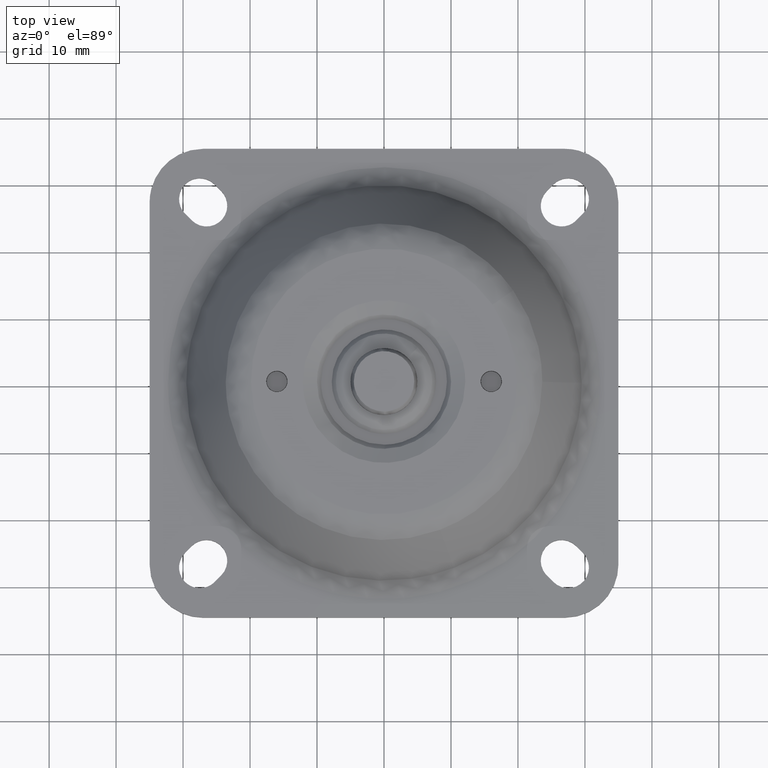
[diagram: clean part render]
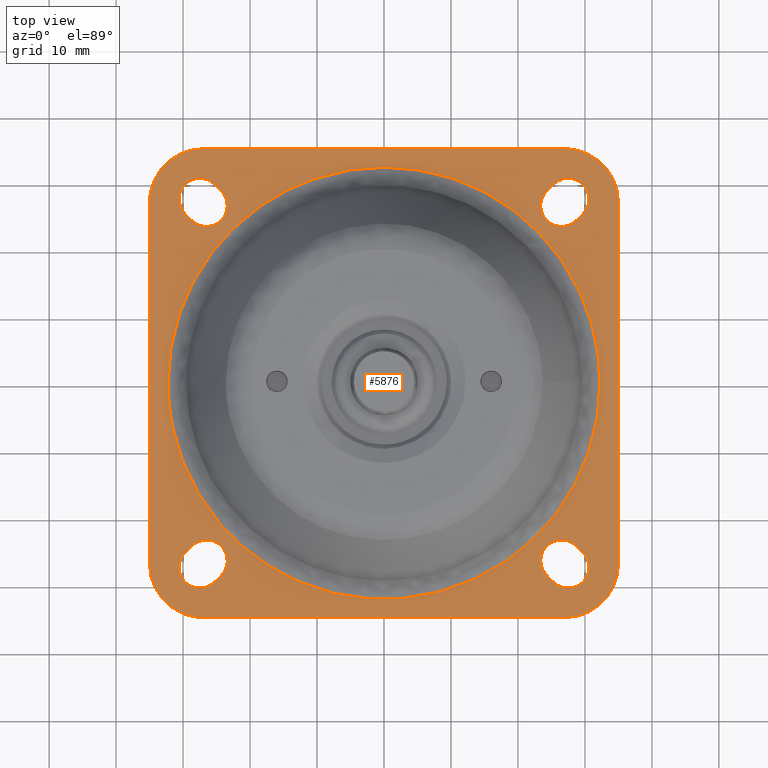
[diagram: same view with one face highlighted and labeled with its STEP entity id]
A machine part, top view. The second image highlights one B-rep face of the part: STEP entity #5876.
In plain terms, the highlighted face is a freeform B-spline surface patch.
Its self-contained STEP definition (entity closure, byte-faithful):
#4010=CARTESIAN_POINT('',(29.180672441513511,13.731382152763819,14.0));
#4011=VERTEX_POINT('',#4010);
#4025=CARTESIAN_POINT('',(-10.270217854380959,30.570985022107450,14.0));
#4026=VERTEX_POINT('',#4025);
#4027=CARTESIAN_POINT('',(-10.270217854380959,30.570985022107454,14.000000000000002));
#4028=CARTESIAN_POINT('',(-5.272354861792392,32.249999999999993,13.999999999999995));
#4029=CARTESIAN_POINT('',(0.0,32.250000000000000,14.0));
#4030=CARTESIAN_POINT('',(20.466472345757058,32.250000000000007,14.000000000000002));
#4031=CARTESIAN_POINT('',(29.180672441513508,13.731382152763823,13.999999999999996));
#4039=(BOUNDED_CURVE()B_SPLINE_CURVE(2,(#4027,#4028,#4029,#4030,#4031),.UNSPECIFIED.,.F.,.U.)B_SPLINE_CURVE_WITH_KNOTS((3,2,3),(0.195865557710878,0.250000000000000,0.427668464636188),.UNSPECIFIED.)CURVE()GEOMETRIC_REPRESENTATION_ITEM()RATIONAL_B_SPLINE_CURVE((0.900621820758451,0.936577555797072,1.0,0.791848446044251,0.879552628112139))REPRESENTATION_ITEM(''));
#4040=EDGE_CURVE('',#4026,#4011,#4039,.T.);
#4109=CARTESIAN_POINT('',(-32.250000000000000,0.0,14.0));
#4110=VERTEX_POINT('',#4109);
#4111=CARTESIAN_POINT('',(-32.250000000000000,0.0,14.0));
#4112=CARTESIAN_POINT('',(-32.250000000000000,23.186952389097335,13.999999999999996));
#4113=CARTESIAN_POINT('',(-10.270217854380959,30.570985022107454,14.000000000000002));
#4121=(BOUNDED_CURVE()B_SPLINE_CURVE(2,(#4111,#4112,#4113),.UNSPECIFIED.,.F.,.U.)B_SPLINE_CURVE_WITH_KNOTS((3,3),(0.0,0.195865557710878),.UNSPECIFIED.)CURVE()GEOMETRIC_REPRESENTATION_ITEM()RATIONAL_B_SPLINE_CURVE((1.0,0.770529225389476,0.900621820758451))REPRESENTATION_ITEM(''));
#4122=EDGE_CURVE('',#4110,#4026,#4121,.T.);
#4124=CARTESIAN_POINT('',(32.250000000000000,0.0,14.0));
#4125=VERTEX_POINT('',#4124);
#4126=CARTESIAN_POINT('',(32.250000000000000,0.0,14.0));
#4127=CARTESIAN_POINT('',(32.250000000000000,-32.250000000000000,13.999999999999998));
#4128=CARTESIAN_POINT('',(0.0,-32.250000000000000,14.0));
#4129=CARTESIAN_POINT('',(-32.250000000000000,-32.250000000000000,13.999999999999998));
#4130=CARTESIAN_POINT('',(-32.250000000000000,0.0,14.0));
#4138=(BOUNDED_CURVE()B_SPLINE_CURVE(2,(#4126,#4127,#4128,#4129,#4130),.UNSPECIFIED.,.F.,.U.)B_SPLINE_CURVE_WITH_KNOTS((3,2,3),(0.500000000000000,0.750000000000000,1.0),.UNSPECIFIED.)CURVE()GEOMETRIC_REPRESENTATION_ITEM()RATIONAL_B_SPLINE_CURVE((1.0,0.707106781186548,1.0,0.707106781186548,1.0))REPRESENTATION_ITEM(''));
#4139=EDGE_CURVE('',#4125,#4110,#4138,.T.);
#4141=CARTESIAN_POINT('',(29.180672441513511,13.731382152763819,14.000000000000004));
#4142=CARTESIAN_POINT('',(32.250000000000000,7.208729073464277,14.000000000000002));
#4143=CARTESIAN_POINT('',(32.250000000000000,0.0,14.0));
#4151=(BOUNDED_CURVE()B_SPLINE_CURVE(2,(#4141,#4142,#4143),.UNSPECIFIED.,.F.,.U.)B_SPLINE_CURVE_WITH_KNOTS((3,3),(0.427668464636188,0.500000000000000),.UNSPECIFIED.)CURVE()GEOMETRIC_REPRESENTATION_ITEM()RATIONAL_B_SPLINE_CURVE((0.879552628112139,0.915258335142296,1.0))REPRESENTATION_ITEM(''));
#4152=EDGE_CURVE('',#4011,#4125,#4151,.T.);
#4692=CARTESIAN_POINT('',(-28.692029733588750,24.307968690246401,14.000000000000121));
#4693=VERTEX_POINT('',#4692);
#4694=CARTESIAN_POINT('',(-24.307974266392701,28.692037309753601,14.000000000000121));
#4695=VERTEX_POINT('',#4694);
#4696=CARTESIAN_POINT('',(-28.692029733588761,24.307968690246391,14.000000000000121));
#4697=CARTESIAN_POINT('',(-27.426458134779605,23.042400888182428,14.000000000000126));
#4698=CARTESIAN_POINT('',(-25.697658468576009,23.505634142027262,14.000000000000121));
#4699=CARTESIAN_POINT('',(-23.968858802372406,23.968867395872085,14.000000000000126));
#4700=CARTESIAN_POINT('',(-23.505630734977959,25.697668451780888,14.000000000000121));
#4701=CARTESIAN_POINT('',(-23.042402667583509,27.426469507689681,14.000000000000126));
#4702=CARTESIAN_POINT('',(-24.307974266392669,28.692037309753630,14.000000000000121));
#4710=(BOUNDED_CURVE()B_SPLINE_CURVE(2,(#4696,#4697,#4698,#4699,#4700,#4701,#4702),.UNSPECIFIED.,.F.,.U.)B_SPLINE_CURVE_WITH_KNOTS((3,2,2,3),(0.0,0.333333333333333,0.666666666666667,1.0),.UNSPECIFIED.)CURVE()GEOMETRIC_REPRESENTATION_ITEM()RATIONAL_B_SPLINE_CURVE((1.0,0.866025403784438,1.0,0.866025403784438,1.0,0.866025403784438,1.0))REPRESENTATION_ITEM(''));
#4711=EDGE_CURVE('',#4693,#4695,#4710,.T.);
#4752=CARTESIAN_POINT('',(-25.307969266401749,29.692029309753600,14.000000000000121));
#4753=VERTEX_POINT('',#4752);
#4765=CARTESIAN_POINT('',(-25.307969266401749,29.692029309753600,14.000000000000121));
#4766=CARTESIAN_POINT('',(-24.307974266392701,28.692037309753601,14.000000000000121));
#4767=QUASI_UNIFORM_CURVE('',1,(#4765,#4766),.UNSPECIFIED.,.F.,.U.);
#4768=EDGE_CURVE('',#4753,#4695,#4767,.T.);
#4791=CARTESIAN_POINT('',(-29.692024733598050,25.307960690246549,14.000000000000121));
#4792=VERTEX_POINT('',#4791);
#4793=CARTESIAN_POINT('',(-25.307969266401770,29.692029309753579,14.000000000000121));
#4794=CARTESIAN_POINT('',(-27.500003576155290,31.884057043351692,14.000000000000123));
#4795=CARTESIAN_POINT('',(-29.692031309753421,29.692022733598190,14.000000000000121));
#4796=CARTESIAN_POINT('',(-31.884059043351549,27.499988423844684,14.000000000000123));
#4797=CARTESIAN_POINT('',(-29.692024733598060,25.307960690246539,14.000000000000121));
#4805=(BOUNDED_CURVE()B_SPLINE_CURVE(2,(#4793,#4794,#4795,#4796,#4797),.UNSPECIFIED.,.F.,.U.)B_SPLINE_CURVE_WITH_KNOTS((3,2,3),(0.0,0.500000000000000,1.0),.UNSPECIFIED.)CURVE()GEOMETRIC_REPRESENTATION_ITEM()RATIONAL_B_SPLINE_CURVE((1.0,0.707106781186550,1.0,0.707106781186550,1.0))REPRESENTATION_ITEM(''));
#4806=EDGE_CURVE('',#4753,#4792,#4805,.T.);
#4846=CARTESIAN_POINT('',(-28.692029733588750,24.307968690246401,14.000000000000121));
#4847=CARTESIAN_POINT('',(-29.692024733598050,25.307960690246549,14.000000000000121));
#4848=QUASI_UNIFORM_CURVE('',1,(#4846,#4847),.UNSPECIFIED.,.F.,.U.);
#4849=EDGE_CURVE('',#4693,#4792,#4848,.T.);
#4872=CARTESIAN_POINT('',(24.307974266392900,28.692037309753601,14.000000000000121));
#4873=VERTEX_POINT('',#4872);
#4874=CARTESIAN_POINT('',(28.692029733589099,24.307968690246351,14.000000000000121));
#4875=VERTEX_POINT('',#4874);
#4876=CARTESIAN_POINT('',(24.307974266392922,28.692037309753580,14.000000000000121));
#4877=CARTESIAN_POINT('',(22.115939956639359,26.500009576155509,14.000000000000119));
#4878=CARTESIAN_POINT('',(24.307967690237412,24.307975266401940,14.000000000000121));
#4879=CARTESIAN_POINT('',(26.499995423835458,22.115940956648366,14.000000000000119));
#4880=CARTESIAN_POINT('',(28.692029733589060,24.307968690246391,14.000000000000121));
#4888=(BOUNDED_CURVE()B_SPLINE_CURVE(2,(#4876,#4877,#4878,#4879,#4880),.UNSPECIFIED.,.F.,.U.)B_SPLINE_CURVE_WITH_KNOTS((3,2,3),(0.0,0.500000000000000,1.0),.UNSPECIFIED.)CURVE()GEOMETRIC_REPRESENTATION_ITEM()RATIONAL_B_SPLINE_CURVE((1.0,0.707106781186550,1.0,0.707106781186550,1.0))REPRESENTATION_ITEM(''));
#4889=EDGE_CURVE('',#4873,#4875,#4888,.T.);
#4930=CARTESIAN_POINT('',(29.692024733598199,25.307960690246500,14.000000000000121));
#4931=VERTEX_POINT('',#4930);
#4943=CARTESIAN_POINT('',(29.692024733598199,25.307960690246500,14.000000000000121));
#4944=CARTESIAN_POINT('',(28.692029733589099,24.307968690246351,14.000000000000121));
#4945=QUASI_UNIFORM_CURVE('',1,(#4943,#4944),.UNSPECIFIED.,.F.,.U.);
#4946=EDGE_CURVE('',#4931,#4875,#4945,.T.);
#4969=CARTESIAN_POINT('',(25.307969266401951,29.692029309753600,14.000000000000121));
#4970=VERTEX_POINT('',#4969);
#4971=CARTESIAN_POINT('',(29.692024733598210,25.307960690246489,14.000000000000121));
#4972=CARTESIAN_POINT('',(30.957596332407327,26.573528492310491,14.000000000000126));
#4973=CARTESIAN_POINT('',(30.494368265012820,28.302329548219269,14.000000000000121));
#4974=CARTESIAN_POINT('',(30.031140197618321,30.031130604128041,14.000000000000126));
#4975=CARTESIAN_POINT('',(28.302340531414700,30.494363857972822,14.000000000000121));
#4976=CARTESIAN_POINT('',(26.573540865211069,30.957597111817591,14.000000000000126));
#4977=CARTESIAN_POINT('',(25.307969266401969,29.692029309753579,14.000000000000121));
#4985=(BOUNDED_CURVE()B_SPLINE_CURVE(2,(#4971,#4972,#4973,#4974,#4975,#4976,#4977),.UNSPECIFIED.,.F.,.U.)B_SPLINE_CURVE_WITH_KNOTS((3,2,2,3),(0.0,0.333333333333333,0.666666666666667,1.0),.UNSPECIFIED.)CURVE()GEOMETRIC_REPRESENTATION_ITEM()RATIONAL_B_SPLINE_CURVE((1.0,0.866025403784438,1.0,0.866025403784438,1.0,0.866025403784438,1.0))REPRESENTATION_ITEM(''));
#4986=EDGE_CURVE('',#4931,#4970,#4985,.T.);
#5028=CARTESIAN_POINT('',(24.307974266392900,28.692037309753601,14.000000000000121));
#5029=CARTESIAN_POINT('',(25.307969266401951,29.692029309753600,14.000000000000121));
#5030=QUASI_UNIFORM_CURVE('',1,(#5028,#5029),.UNSPECIFIED.,.F.,.U.);
#5031=EDGE_CURVE('',#4873,#4970,#5030,.T.);
#5054=CARTESIAN_POINT('',(25.307977266411200,-29.692029309753600,14.000000000000121));
#5055=VERTEX_POINT('',#5054);
#5056=CARTESIAN_POINT('',(29.692032733607348,-25.307960690246400,14.000000000000121));
#5057=VERTEX_POINT('',#5056);
#5058=CARTESIAN_POINT('',(25.307977266411221,-29.692029309753579,14.000000000000121));
#5059=CARTESIAN_POINT('',(26.573548865220353,-30.957597111817570,14.000000000000119));
#5060=CARTESIAN_POINT('',(28.302348531423959,-30.494363857972751,14.000000000000121));
#5061=CARTESIAN_POINT('',(30.031148197627569,-30.031130604127938,14.000000000000119));
#5062=CARTESIAN_POINT('',(30.494376265022041,-28.302329548219149,14.000000000000121));
#5063=CARTESIAN_POINT('',(30.957604332416505,-26.573528492310363,14.000000000000119));
#5064=CARTESIAN_POINT('',(29.692032733607359,-25.307960690246389,14.000000000000121));
#5072=(BOUNDED_CURVE()B_SPLINE_CURVE(2,(#5058,#5059,#5060,#5061,#5062,#5063,#5064),.UNSPECIFIED.,.F.,.U.)B_SPLINE_CURVE_WITH_KNOTS((3,2,2,3),(0.0,0.333333333333333,0.666666666666667,1.0),.UNSPECIFIED.)CURVE()GEOMETRIC_REPRESENTATION_ITEM()RATIONAL_B_SPLINE_CURVE((1.0,0.866025403784438,1.0,0.866025403784438,1.0,0.866025403784438,1.0))REPRESENTATION_ITEM(''));
#5073=EDGE_CURVE('',#5055,#5057,#5072,.T.);
#5114=CARTESIAN_POINT('',(24.307982266401950,-28.692037309753498,14.000000000000121));
#5115=VERTEX_POINT('',#5114);
#5116=CARTESIAN_POINT('',(24.307982266401950,-28.692037309753498,14.000000000000121));
#5117=CARTESIAN_POINT('',(25.307977266411200,-29.692029309753600,14.000000000000121));
#5118=QUASI_UNIFORM_CURVE('',1,(#5116,#5117),.UNSPECIFIED.,.F.,.U.);
#5119=EDGE_CURVE('',#5115,#5055,#5118,.T.);
#5155=CARTESIAN_POINT('',(28.692037733598202,-24.307968690246401,14.000000000000121));
#5156=VERTEX_POINT('',#5155);
#5157=CARTESIAN_POINT('',(28.692037733598159,-24.307968690246440,14.000000000000121));
#5158=CARTESIAN_POINT('',(27.426466134789056,-23.042400888182403,14.000000000000124));
#5159=CARTESIAN_POINT('',(25.697666468585421,-23.505634142027180,14.000000000000121));
#5160=CARTESIAN_POINT('',(23.968866802381790,-23.968867395871943,14.000000000000124));
#5161=CARTESIAN_POINT('',(23.505638734987279,-25.697668451780739,14.000000000000121));
#5162=CARTESIAN_POINT('',(23.042410667592776,-27.426469507689536,14.000000000000124));
#5163=CARTESIAN_POINT('',(24.307982266401918,-28.692037309753530,14.000000000000121));
#5171=(BOUNDED_CURVE()B_SPLINE_CURVE(2,(#5157,#5158,#5159,#5160,#5161,#5162,#5163),.UNSPECIFIED.,.F.,.U.)B_SPLINE_CURVE_WITH_KNOTS((3,2,2,3),(0.0,0.333333333333333,0.666666666666667,1.0),.UNSPECIFIED.)CURVE()GEOMETRIC_REPRESENTATION_ITEM()RATIONAL_B_SPLINE_CURVE((1.0,0.866025403784436,1.0,0.866025403784436,1.0,0.866025403784436,1.0))REPRESENTATION_ITEM(''));
#5172=EDGE_CURVE('',#5156,#5115,#5171,.T.);
#5207=CARTESIAN_POINT('',(29.692032733607348,-25.307960690246400,14.000000000000121));
#5208=CARTESIAN_POINT('',(28.692037733598202,-24.307968690246401,14.000000000000121));
#5209=QUASI_UNIFORM_CURVE('',1,(#5207,#5208),.UNSPECIFIED.,.F.,.U.);
#5210=EDGE_CURVE('',#5057,#5156,#5209,.T.);
#5240=CARTESIAN_POINT('',(-29.692031733607049,-25.307960690246400,14.000000000000121));
#5241=VERTEX_POINT('',#5240);
#5242=CARTESIAN_POINT('',(-25.307976266411000,-29.692029309753600,14.000000000000121));
#5243=VERTEX_POINT('',#5242);
#5244=CARTESIAN_POINT('',(-29.692031733607049,-25.307960690246389,14.000000000000121));
#5245=CARTESIAN_POINT('',(-31.884066043360654,-27.499988423844428,14.000000000000121));
#5246=CARTESIAN_POINT('',(-29.692038309762619,-29.692022733598041,14.000000000000121));
#5247=CARTESIAN_POINT('',(-27.500010576164602,-31.884057043351650,14.000000000000121));
#5248=CARTESIAN_POINT('',(-25.307976266410972,-29.692029309753639,14.000000000000121));
#5256=(BOUNDED_CURVE()B_SPLINE_CURVE(2,(#5244,#5245,#5246,#5247,#5248),.UNSPECIFIED.,.F.,.U.)B_SPLINE_CURVE_WITH_KNOTS((3,2,3),(0.0,0.500000000000000,1.0),.UNSPECIFIED.)CURVE()GEOMETRIC_REPRESENTATION_ITEM()RATIONAL_B_SPLINE_CURVE((1.0,0.707106781186550,1.0,0.707106781186550,1.0))REPRESENTATION_ITEM(''));
#5257=EDGE_CURVE('',#5241,#5243,#5256,.T.);
#5298=CARTESIAN_POINT('',(-24.307981266401800,-28.692037309753498,14.000000000000121));
#5299=VERTEX_POINT('',#5298);
#5311=CARTESIAN_POINT('',(-24.307981266401800,-28.692037309753498,14.000000000000121));
#5312=CARTESIAN_POINT('',(-25.307976266411000,-29.692029309753600,14.000000000000121));
#5313=QUASI_UNIFORM_CURVE('',1,(#5311,#5312),.UNSPECIFIED.,.F.,.U.);
#5314=EDGE_CURVE('',#5299,#5243,#5313,.T.);
#5337=CARTESIAN_POINT('',(-28.692036733598052,-24.307968690246401,14.000000000000121));
#5338=VERTEX_POINT('',#5337);
#5339=CARTESIAN_POINT('',(-24.307981266401800,-28.692037309753509,14.000000000000121));
#5340=CARTESIAN_POINT('',(-23.042409667592686,-27.426469507689507,14.000000000000126));
#5341=CARTESIAN_POINT('',(-23.505637734987189,-25.697668451780729,14.000000000000121));
#5342=CARTESIAN_POINT('',(-23.968865802381689,-23.968867395871946,14.000000000000126));
#5343=CARTESIAN_POINT('',(-25.697665468585310,-23.505634142027180,14.000000000000121));
#5344=CARTESIAN_POINT('',(-27.426465134788927,-23.042400888182407,14.000000000000126));
#5345=CARTESIAN_POINT('',(-28.692036733598030,-24.307968690246419,14.000000000000121));
#5353=(BOUNDED_CURVE()B_SPLINE_CURVE(2,(#5339,#5340,#5341,#5342,#5343,#5344,#5345),.UNSPECIFIED.,.F.,.U.)B_SPLINE_CURVE_WITH_KNOTS((3,2,2,3),(0.0,0.333333333333333,0.666666666666667,1.0),.UNSPECIFIED.)CURVE()GEOMETRIC_REPRESENTATION_ITEM()RATIONAL_B_SPLINE_CURVE((1.0,0.866025403784438,1.0,0.866025403784438,1.0,0.866025403784438,1.0))REPRESENTATION_ITEM(''));
#5354=EDGE_CURVE('',#5299,#5338,#5353,.T.);
#5396=CARTESIAN_POINT('',(-29.692031733607049,-25.307960690246400,14.000000000000121));
#5397=CARTESIAN_POINT('',(-28.692036733598052,-24.307968690246401,14.000000000000121));
#5398=QUASI_UNIFORM_CURVE('',1,(#5396,#5397),.UNSPECIFIED.,.F.,.U.);
#5399=EDGE_CURVE('',#5241,#5338,#5398,.T.);
#5474=CARTESIAN_POINT('',(27.0,35.0,14.000000000000121));
#5475=VERTEX_POINT('',#5474);
#5476=CARTESIAN_POINT('',(-27.0,35.0,14.000000000000121));
#5477=VERTEX_POINT('',#5476);
#5478=CARTESIAN_POINT('',(27.0,35.0,14.000000000000121));
#5479=CARTESIAN_POINT('',(-27.0,35.0,14.000000000000121));
#5480=QUASI_UNIFORM_CURVE('',1,(#5478,#5479),.UNSPECIFIED.,.F.,.U.);
#5481=EDGE_CURVE('',#5475,#5477,#5480,.T.);
#5519=CARTESIAN_POINT('',(35.0,27.0,14.000000000000121));
#5520=VERTEX_POINT('',#5519);
#5521=CARTESIAN_POINT('',(35.0,27.0,14.000000000000121));
#5522=CARTESIAN_POINT('',(34.999999999999993,34.999999999999993,14.000000000000123));
#5523=CARTESIAN_POINT('',(27.0,35.0,14.000000000000121));
#5531=(BOUNDED_CURVE()B_SPLINE_CURVE(2,(#5521,#5522,#5523),.UNSPECIFIED.,.F.,.U.)CURVE()GEOMETRIC_REPRESENTATION_ITEM()QUASI_UNIFORM_CURVE()RATIONAL_B_SPLINE_CURVE((1.0,0.707106781186548,1.0))REPRESENTATION_ITEM(''));
#5532=EDGE_CURVE('',#5520,#5475,#5531,.T.);
#5563=CARTESIAN_POINT('',(35.0,-27.000004000000050,14.000000000000121));
#5564=VERTEX_POINT('',#5563);
#5565=CARTESIAN_POINT('',(35.0,-27.000004000000050,14.000000000000121));
#5566=CARTESIAN_POINT('',(35.0,27.0,14.000000000000121));
#5567=QUASI_UNIFORM_CURVE('',1,(#5565,#5566),.UNSPECIFIED.,.F.,.U.);
#5568=EDGE_CURVE('',#5564,#5520,#5567,.T.);
#5600=CARTESIAN_POINT('',(26.999999000000098,-35.000003999999997,14.000000000000121));
#5601=VERTEX_POINT('',#5600);
#5602=CARTESIAN_POINT('',(26.999999000000098,-35.000003999999990,14.000000000000121));
#5603=CARTESIAN_POINT('',(30.313707791878034,-35.000004414213556,14.000000000000126));
#5604=CARTESIAN_POINT('',(32.656853895939022,-32.656858603045777,14.000000000000121));
#5605=CARTESIAN_POINT('',(35.000000000000007,-30.313712791878004,14.000000000000126));
#5606=CARTESIAN_POINT('',(35.0,-27.000004000000050,14.000000000000121));
#5614=(BOUNDED_CURVE()B_SPLINE_CURVE(2,(#5602,#5603,#5604,#5605,#5606),.UNSPECIFIED.,.F.,.U.)B_SPLINE_CURVE_WITH_KNOTS((3,2,3),(0.0,0.500000000000000,1.0),.UNSPECIFIED.)CURVE()GEOMETRIC_REPRESENTATION_ITEM()RATIONAL_B_SPLINE_CURVE((1.0,0.923879520552430,1.0,0.923879520552430,1.0))REPRESENTATION_ITEM(''));
#5615=EDGE_CURVE('',#5601,#5564,#5614,.T.);
#5648=CARTESIAN_POINT('',(-26.999999720747400,-35.000004000000047,14.000000000000121));
#5649=VERTEX_POINT('',#5648);
#5650=CARTESIAN_POINT('',(-26.999999720747400,-35.000004000000047,14.000000000000121));
#5651=CARTESIAN_POINT('',(26.999999000000098,-35.000003999999997,14.000000000000121));
#5652=QUASI_UNIFORM_CURVE('',1,(#5650,#5651),.UNSPECIFIED.,.F.,.U.);
#5653=EDGE_CURVE('',#5649,#5601,#5652,.T.);
#5685=CARTESIAN_POINT('',(-35.0,-27.000004000000050,14.000000000000121));
#5686=VERTEX_POINT('',#5685);
#5687=CARTESIAN_POINT('',(-35.0,-27.000004000000050,14.000000000000121));
#5688=CARTESIAN_POINT('',(-35.0,-30.313712580776002,14.000000000000123));
#5689=CARTESIAN_POINT('',(-32.656854150761667,-32.656858348223132,14.000000000000121));
#5690=CARTESIAN_POINT('',(-30.313708301523345,-35.000004115670272,14.000000000000123));
#5691=CARTESIAN_POINT('',(-26.999999720747400,-35.000004000000040,14.000000000000121));
#5699=(BOUNDED_CURVE()B_SPLINE_CURVE(2,(#5687,#5688,#5689,#5690,#5691),.UNSPECIFIED.,.F.,.U.)B_SPLINE_CURVE_WITH_KNOTS((3,2,3),(0.0,0.500000000000000,1.0),.UNSPECIFIED.)CURVE()GEOMETRIC_REPRESENTATION_ITEM()RATIONAL_B_SPLINE_CURVE((1.0,0.923879529171745,1.0,0.923879529171745,1.0))REPRESENTATION_ITEM(''));
#5700=EDGE_CURVE('',#5686,#5649,#5699,.T.);
#5733=CARTESIAN_POINT('',(-35.0,27.0,14.000000000000121));
#5734=VERTEX_POINT('',#5733);
#5735=CARTESIAN_POINT('',(-35.0,27.0,14.000000000000121));
#5736=CARTESIAN_POINT('',(-35.0,-27.000004000000050,14.000000000000121));
#5737=QUASI_UNIFORM_CURVE('',1,(#5735,#5736),.UNSPECIFIED.,.F.,.U.);
#5738=EDGE_CURVE('',#5734,#5686,#5737,.T.);
#5770=CARTESIAN_POINT('',(-27.0,35.0,14.000000000000121));
#5771=CARTESIAN_POINT('',(-34.999999999999993,34.999999999999993,14.000000000000123));
#5772=CARTESIAN_POINT('',(-35.0,27.0,14.000000000000121));
#5780=(BOUNDED_CURVE()B_SPLINE_CURVE(2,(#5770,#5771,#5772),.UNSPECIFIED.,.F.,.U.)CURVE()GEOMETRIC_REPRESENTATION_ITEM()QUASI_UNIFORM_CURVE()RATIONAL_B_SPLINE_CURVE((1.0,0.707106781186548,1.0))REPRESENTATION_ITEM(''));
#5781=EDGE_CURVE('',#5477,#5734,#5780,.T.);
#5831=CARTESIAN_POINT('',(-38.496499864326417,38.496500064126423,14.0));
#5832=CARTESIAN_POINT('',(38.496501741872720,38.496500064126423,14.0));
#5833=CARTESIAN_POINT('',(-38.496499864326417,-38.496505941672879,14.0));
#5834=CARTESIAN_POINT('',(38.496501741872720,-38.496505941672879,14.0));
#5835=B_SPLINE_SURFACE_WITH_KNOTS('',1,1,((#5831,#5833),(#5832,#5834)),.UNSPECIFIED.,.F.,.F.,.U.,(2,2),(2,2),(0.0,76.993001606199130),(0.0,76.993006005799288),.UNSPECIFIED.);
#5836=ORIENTED_EDGE('',*,*,#5781,.T.);
#5837=ORIENTED_EDGE('',*,*,#5738,.T.);
#5838=ORIENTED_EDGE('',*,*,#5700,.T.);
#5839=ORIENTED_EDGE('',*,*,#5653,.T.);
#5840=ORIENTED_EDGE('',*,*,#5615,.T.);
#5841=ORIENTED_EDGE('',*,*,#5568,.T.);
#5842=ORIENTED_EDGE('',*,*,#5532,.T.);
#5843=ORIENTED_EDGE('',*,*,#5481,.T.);
#5844=EDGE_LOOP('',(#5836,#5837,#5838,#5839,#5840,#5841,#5842,#5843));
#5845=FACE_OUTER_BOUND('',#5844,.T.);
#5846=ORIENTED_EDGE('',*,*,#5210,.F.);
#5847=ORIENTED_EDGE('',*,*,#5073,.F.);
#5848=ORIENTED_EDGE('',*,*,#5119,.F.);
#5849=ORIENTED_EDGE('',*,*,#5172,.F.);
#5850=EDGE_LOOP('',(#5846,#5847,#5848,#5849));
#5851=FACE_BOUND('',#5850,.T.);
#5852=ORIENTED_EDGE('',*,*,#4889,.F.);
#5853=ORIENTED_EDGE('',*,*,#5031,.T.);
#5854=ORIENTED_EDGE('',*,*,#4986,.F.);
#5855=ORIENTED_EDGE('',*,*,#4946,.T.);
#5856=EDGE_LOOP('',(#5852,#5853,#5854,#5855));
#5857=FACE_BOUND('',#5856,.T.);
#5858=ORIENTED_EDGE('',*,*,#4139,.T.);
#5859=ORIENTED_EDGE('',*,*,#4122,.T.);
#5860=ORIENTED_EDGE('',*,*,#4040,.T.);
#5861=ORIENTED_EDGE('',*,*,#4152,.T.);
#5862=EDGE_LOOP('',(#5858,#5859,#5860,#5861));
#5863=FACE_BOUND('',#5862,.T.);
#5864=ORIENTED_EDGE('',*,*,#5257,.F.);
#5865=ORIENTED_EDGE('',*,*,#5399,.T.);
#5866=ORIENTED_EDGE('',*,*,#5354,.F.);
#5867=ORIENTED_EDGE('',*,*,#5314,.T.);
#5868=EDGE_LOOP('',(#5864,#5865,#5866,#5867));
#5869=FACE_BOUND('',#5868,.T.);
#5870=ORIENTED_EDGE('',*,*,#4711,.F.);
#5871=ORIENTED_EDGE('',*,*,#4849,.T.);
#5872=ORIENTED_EDGE('',*,*,#4806,.F.);
#5873=ORIENTED_EDGE('',*,*,#4768,.T.);
#5874=EDGE_LOOP('',(#5870,#5871,#5872,#5873));
#5875=FACE_BOUND('',#5874,.T.);
#5876=ADVANCED_FACE('',(#5845,#5851,#5857,#5863,#5869,#5875),#5835,.F.);